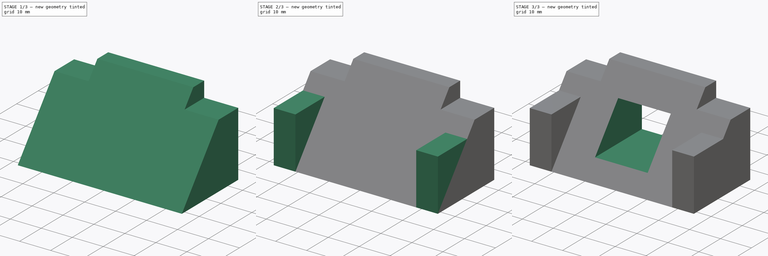
[diagram: build sequence overview — one tinted view per stage of 3, left to right]
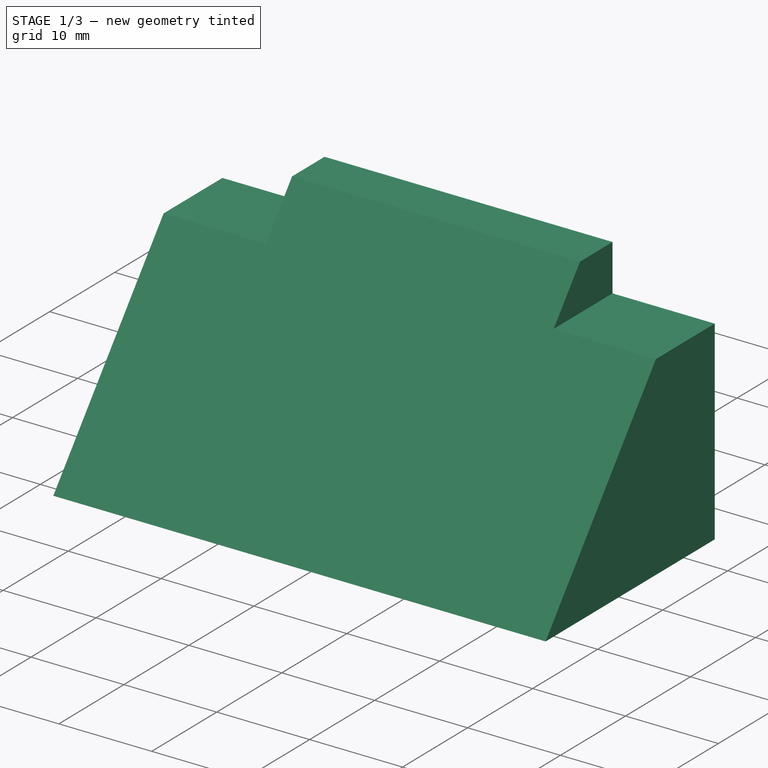
[diagram: stage 1 of 3 — iso view after this stage's code; geometry added in this stage tinted green]
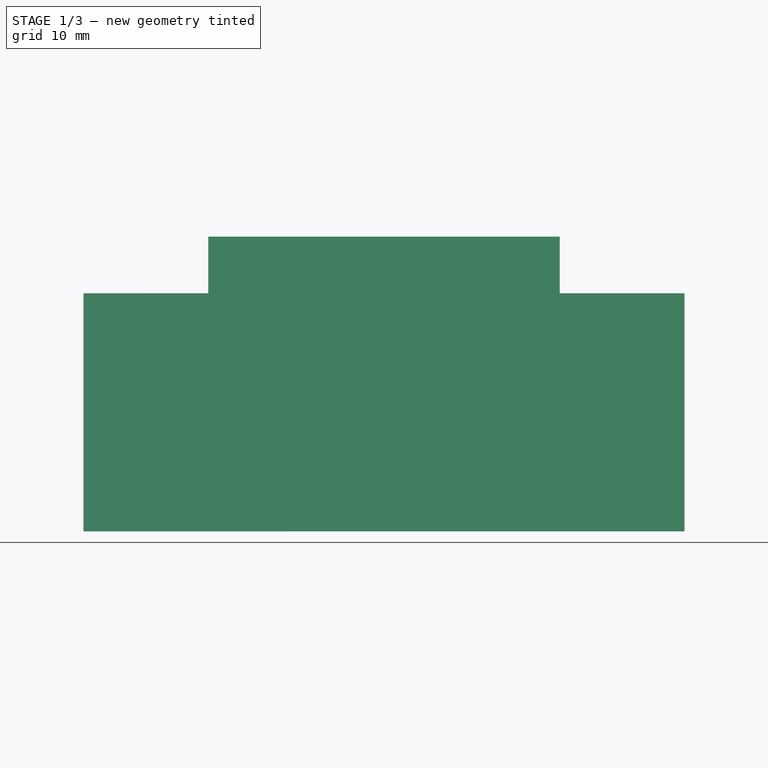
[diagram: stage 1 of 3 — front view after this stage's code; geometry added in this stage tinted green]
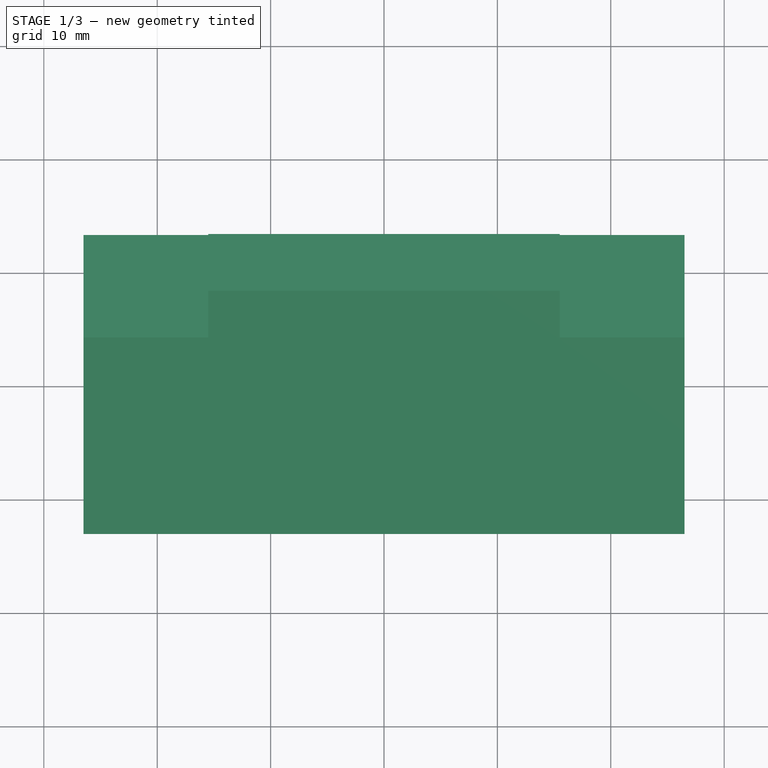
[diagram: stage 1 of 3 — top view after this stage's code; geometry added in this stage tinted green]
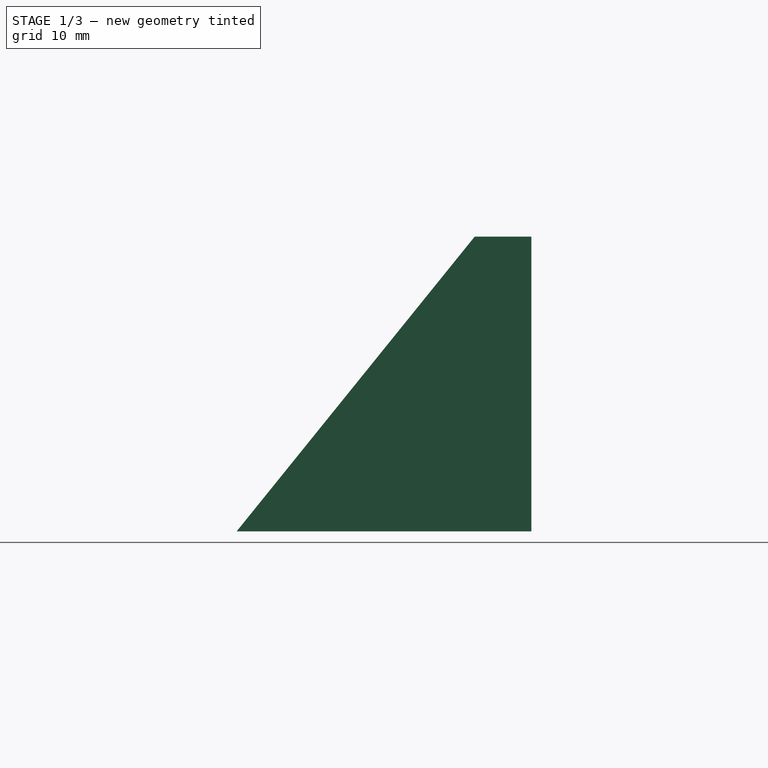
[diagram: stage 1 of 3 — right view after this stage's code; geometry added in this stage tinted green]
FCSTD DOCUMENT  (FreeCAD 0.16R6706 (Git))
Label: Basic_Part_Design_Tutorial
License: All rights reserved
LicenseURL: http://en.wikipedia.org/wiki/All_rights_reserved
objects: App::FeaturePython×13, Sketcher::SketchObject×5, PartDesign::Pad×3, PartDesign::Pocket×2, PartDesign::Mirrored×2, Part::FeaturePython×1
note: 18 computed .brp shape members not serialized (recipe doc carries the construction recipe); baked Part::Feature solids carry a one-line shape summary decoded from their .brp

FEATURE [Sketcher::SketchObject] Sketch
  Placement = pos=(0,0,0) rot=(0.57735,0.57735,0.57735;2.0944rad)
  sketch-geometry (4):
    g0: LineSegment StartX=-13 StartY=-13 StartZ=0 EndX=13 EndY=-13 EndZ=0
    g1: LineSegment StartX=13 StartY=-13 StartZ=0 EndX=13 EndY=13 EndZ=0
    g2: LineSegment StartX=13 StartY=13 StartZ=0 EndX=8 EndY=13 EndZ=0
    g3: LineSegment StartX=8 StartY=13 StartZ=0 EndX=-13 EndY=-13 EndZ=0
  constraints (11):
    c: Horizontal(g0)
    c: Coincident(g0,g1)
    c: Vertical(g1)
    c: Coincident(g1,g2)
    c: Horizontal(g2)
    c: Coincident(g2,g3)
    c: Coincident(g3,g0)
    c: Equal(g0,g1)
    c: DistanceX(g2,g2) = 5
    c: DistanceX(g0,g0) = 26
    c: Symmetric(g0,g1,g-1)
FEATURE [PartDesign::Pad] Pad
  Length = 53
  Length2 = 100
  Midplane = true
  Placement = pos=(0,0,0) rot=(0.57735,0.57735,0.57735;2.0944rad)
  Sketch = -> Sketch
  Type = 0
FEATURE [Sketcher::SketchObject] Sketch001
  ExternalGeometry = -> [Pad]
  Placement = pos=(0,13,0) rot=(0.57735,0.57735,0.57735;4.18879rad)
  Support = -> Pad [Face2]
  sketch-geometry (4):
    g0: LineSegment StartX=13 StartY=26.5 StartZ=0 EndX=8 EndY=26.5 EndZ=0
    g1: LineSegment StartX=8 StartY=26.5 StartZ=0 EndX=8 EndY=15.5 EndZ=0
    g2: LineSegment StartX=8 StartY=15.5 StartZ=0 EndX=13 EndY=15.5 EndZ=0
    g3: LineSegment StartX=13 StartY=15.5 StartZ=0 EndX=13 EndY=26.5 EndZ=0
  constraints (11):
    c: Coincident(g0,g1)
    c: Coincident(g1,g2)
    c: Coincident(g2,g3)
    c: Coincident(g3,g0)
    c: Horizontal(g0)
    c: Horizontal(g2)
    c: Vertical(g1)
    c: Vertical(g3)
    c: DistanceY(g1,g1) = 11
    c: DistanceX(g2,g2) = 5
    c: Coincident(g0,g-3)
FEATURE [PartDesign::Pocket] Pocket
  Length = 5
  Placement = pos=(0,0,0) rot=(0.57735,0.57735,0.57735;2.0944rad)
  Sketch = -> Sketch001
  Type = 1
FEATURE [PartDesign::Mirrored] Mirrored
  MirrorPlane = -> Sketch001 [H_Axis]
  Originals = -> [Pocket]
  Placement = pos=(0,0,0) rot=(0.57735,0.57735,0.57735;2.0944rad)
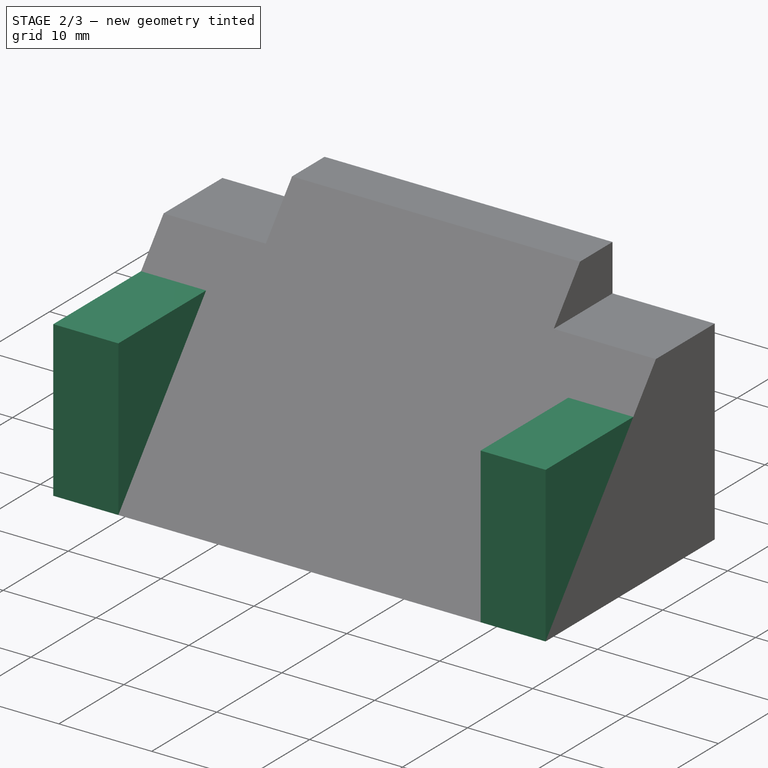
[diagram: stage 2 of 3 — iso view after this stage's code; geometry added in this stage tinted green]
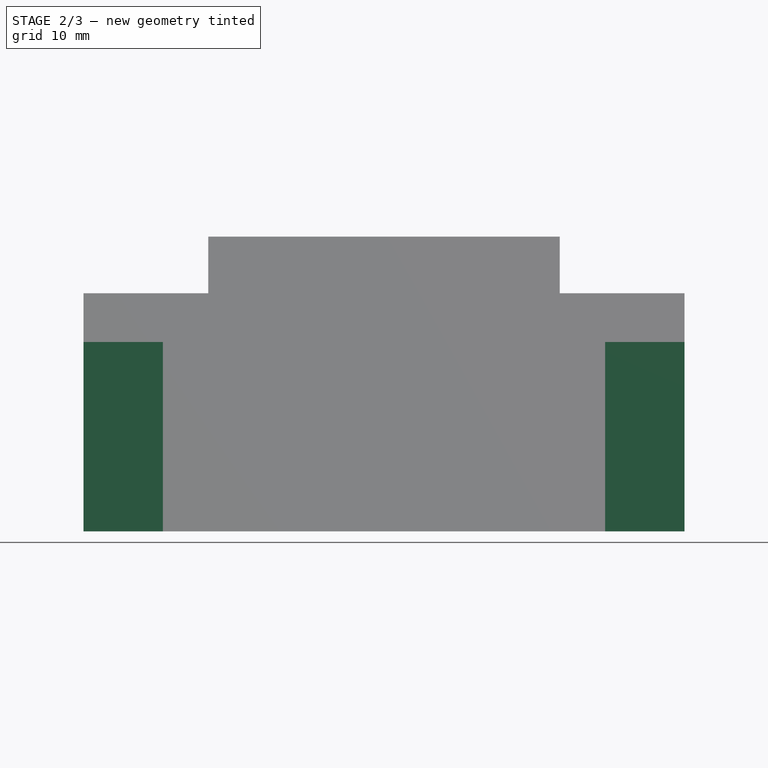
[diagram: stage 2 of 3 — front view after this stage's code; geometry added in this stage tinted green]
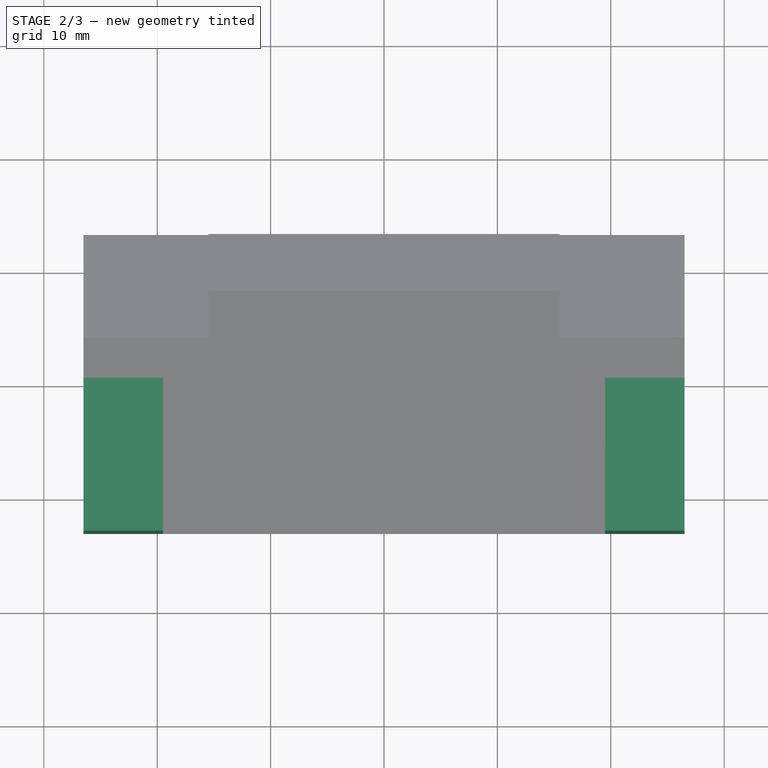
[diagram: stage 2 of 3 — top view after this stage's code; geometry added in this stage tinted green]
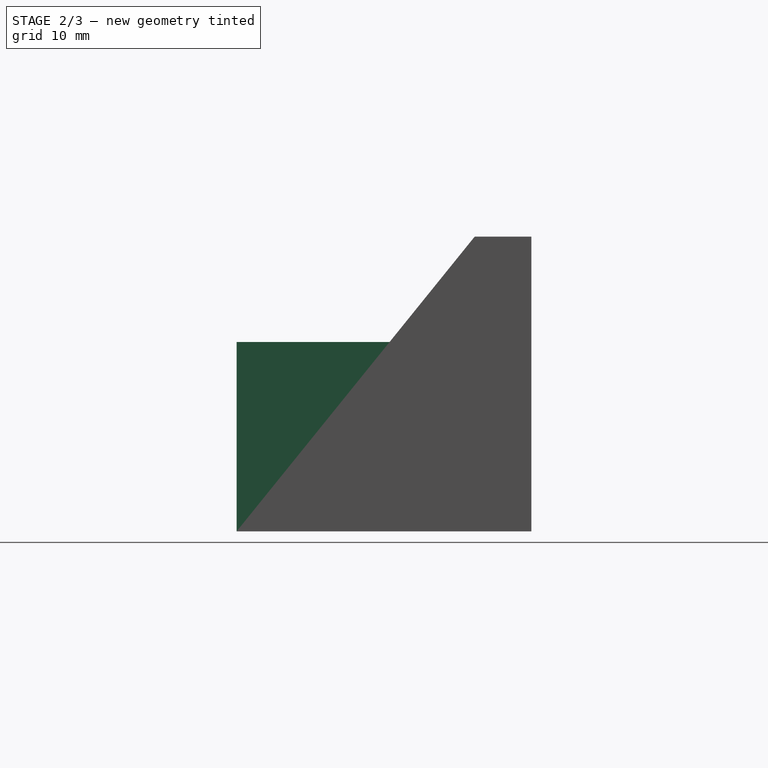
[diagram: stage 2 of 3 — right view after this stage's code; geometry added in this stage tinted green]
FEATURE [Sketcher::SketchObject] Sketch002
  ExternalGeometry = -> [Mirrored]
  Placement = pos=(0,13,0) rot=(0.57735,0.57735,0.57735;4.18879rad)
  Support = -> Mirrored [Face3]
  sketch-geometry (4):
    g0: LineSegment StartX=-13 StartY=26.5 StartZ=0 EndX=3.7 EndY=26.5 EndZ=0
    g1: LineSegment StartX=3.7 StartY=26.5 StartZ=0 EndX=3.7 EndY=19.5 EndZ=0
    g2: LineSegment StartX=3.7 StartY=19.5 StartZ=0 EndX=-13 EndY=19.5 EndZ=0
    g3: LineSegment StartX=-13 StartY=19.5 StartZ=0 EndX=-13 EndY=26.5 EndZ=0
  constraints (11):
    c: Coincident(g0,g1)
    c: Coincident(g1,g2)
    c: Coincident(g2,g3)
    c: Coincident(g3,g0)
    c: Horizontal(g0)
    c: Horizontal(g2)
    c: Vertical(g1)
    c: Vertical(g3)
    c: DistanceX(g2,g2) = 16.7
    c: DistanceY(g1,g1) = 7
    c: Coincident(g0,g-3)
FEATURE [PartDesign::Pad] Pad001
  Length = 26
  Length2 = 100
  Placement = pos=(0,0,0) rot=(0.57735,0.57735,0.57735;2.0944rad)
  Reversed = true
  Sketch = -> Sketch002
  Type = 0
FEATURE [PartDesign::Mirrored] Mirrored001
  MirrorPlane = -> Sketch002 [H_Axis]
  Originals = -> [Pad001]
  Placement = pos=(0,0,0) rot=(0.57735,0.57735,0.57735;2.0944rad)
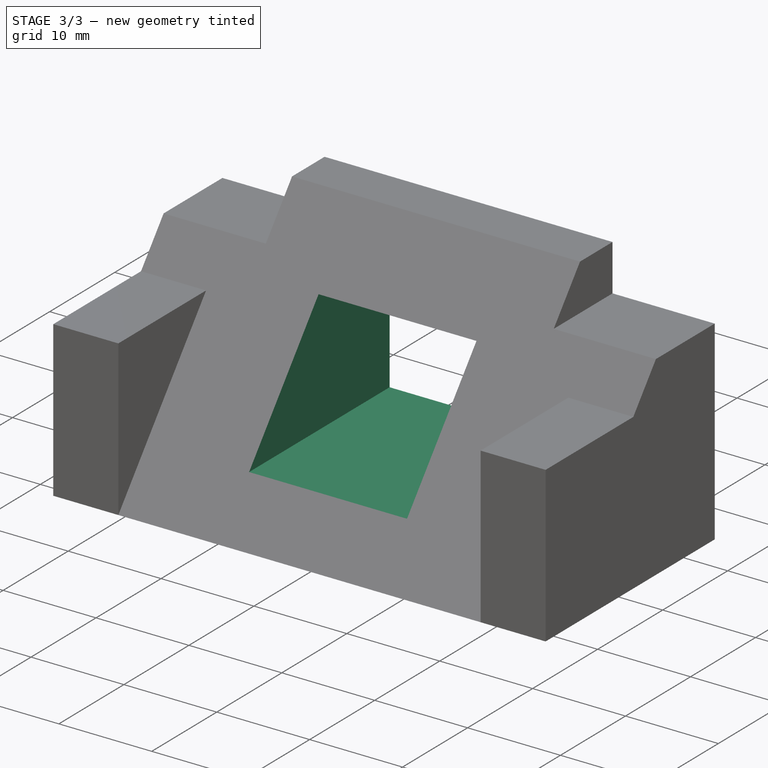
[diagram: stage 3 of 3 — iso view after this stage's code; geometry added in this stage tinted green]
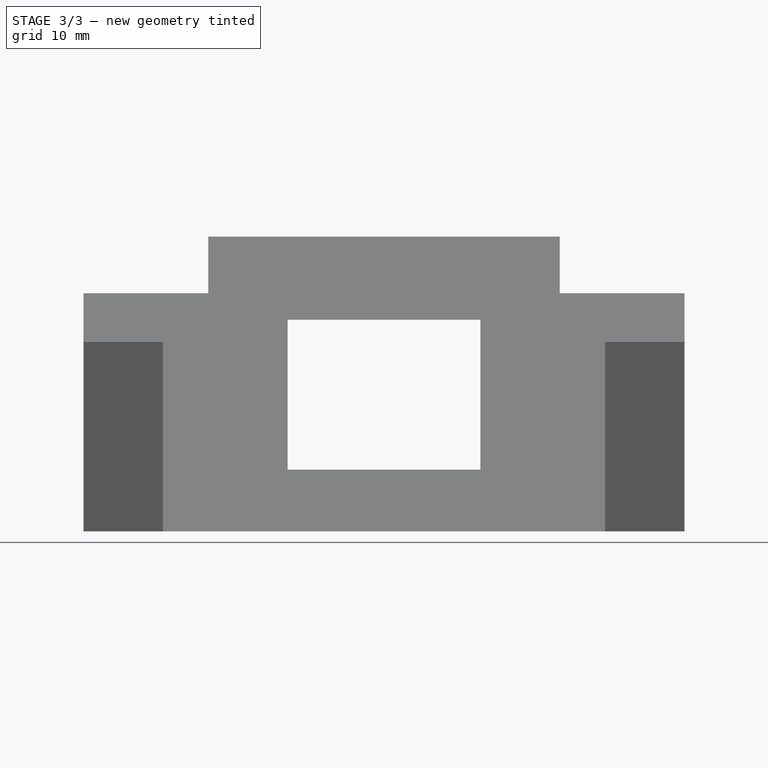
[diagram: stage 3 of 3 — front view after this stage's code; geometry added in this stage tinted green]
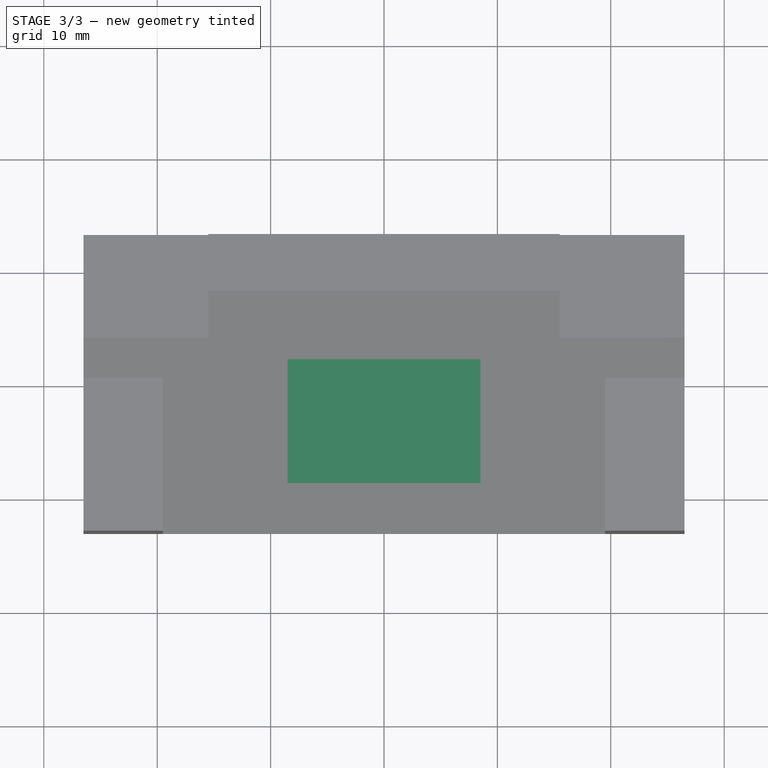
[diagram: stage 3 of 3 — top view after this stage's code; geometry added in this stage tinted green]
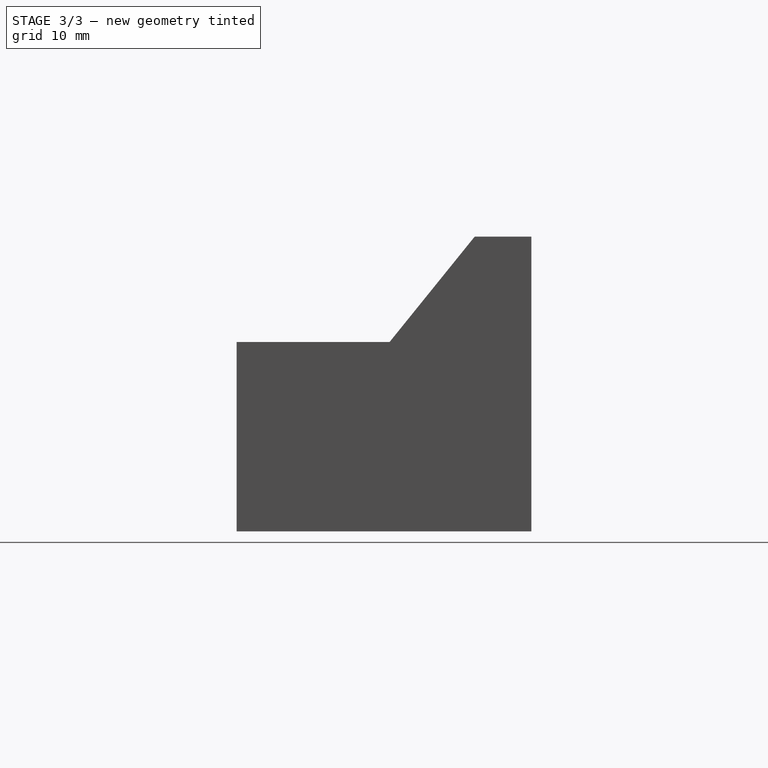
[diagram: stage 3 of 3 — right view after this stage's code; geometry added in this stage tinted green]
FEATURE [Sketcher::SketchObject] Sketch003
  ExternalGeometry = -> [Mirrored001]
  Placement = pos=(0,-1.51298,1.22202) rot=(0.395866,0.395866,-0.828601;1.75771rad)
  Support = -> Mirrored001 [Face3]
  sketch-geometry (4):
    g0: LineSegment StartX=-5.71838 StartY=8.5 StartZ=0 EndX=11.2816 EndY=8.5 EndZ=0
    g1: LineSegment StartX=11.2816 StartY=8.5 StartZ=0 EndX=11.2816 EndY=-8.5 EndZ=0
    g2: LineSegment StartX=11.2816 StartY=-8.5 StartZ=0 EndX=-5.71838 EndY=-8.5 EndZ=0
    g3: LineSegment StartX=-5.71838 StartY=-8.5 StartZ=0 EndX=-5.71838 EndY=8.5 EndZ=0
  constraints (12):
    c: Coincident(g0,g1)
    c: Coincident(g1,g2)
    c: Coincident(g2,g3)
    c: Coincident(g3,g0)
    c: Horizontal(g0)
    c: Horizontal(g2)
    c: Vertical(g1)
    c: Vertical(g3)
    c: Equal(g2,g1)
    c: DistanceY(g3,g3) = 17
    c: DistanceX(g0,g-3) = 7
    c: DistanceY(g0,g-3) = 11
FEATURE [PartDesign::Pad] Pad002
  Length = 1
  Length2 = 100
  Placement = pos=(0,0,0) rot=(0.57735,0.57735,0.57735;2.0944rad)
  Sketch = -> Sketch003
  Type = 0
FEATURE [Sketcher::SketchObject] Sketch004
  ExternalGeometry = -> [Pad002]
  Placement = pos=(0,13,0) rot=(0.57735,0.57735,0.57735;4.18879rad)
  Support = -> Pad002 [Face2]
  sketch-geometry (4):
    g0: LineSegment StartX=5.67059 StartY=8.5 StartZ=0 EndX=-7.55441 EndY=8.5 EndZ=0
    g1: LineSegment StartX=-7.55441 StartY=8.5 StartZ=0 EndX=-7.55441 EndY=-8.5 EndZ=0
    g2: LineSegment StartX=-7.55441 StartY=-8.5 StartZ=0 EndX=5.67059 EndY=-8.5 EndZ=0
    g3: LineSegment StartX=5.67059 StartY=-8.5 StartZ=0 EndX=5.67059 EndY=8.5 EndZ=0
  constraints (10):
    c: Coincident(g0,g1)
    c: Coincident(g1,g2)
    c: Coincident(g2,g3)
    c: Coincident(g3,g0)
    c: Horizontal(g0)
    c: Horizontal(g2)
    c: Vertical(g1)
    c: Vertical(g3)
    c: Coincident(g0,g-3)
    c: Coincident(g1,g-4)
FEATURE [PartDesign::Pocket] Pocket001
  Length = 5
  Placement = pos=(0,0,0) rot=(0.57735,0.57735,0.57735;2.0944rad)
  Sketch = -> Sketch004
  Type = 1
FEATURE [Part::FeaturePython] refine  label="refine_Pocket001"  # WARN: FeaturePython — macro-defined, semantics opaque (R4)
  Base = -> Pocket001
FEATURE [App::FeaturePython] Dimension  # Draft dimension (typed FeaturePython)
  Dimline = (0.798709,-20,-13)
  Direction = (0,0,0)
  Distance = 39
  End = (19.5,-13,-13)
  Normal = (0,0,1)
  Start = (-19.5,-13,-13)
FEATURE [App::FeaturePython] Dimension001  # Draft dimension (typed FeaturePython)
  Dimline = (22.9963,-25,-13)
  Direction = (0,0,0)
  Distance = 7
  End = (26.5,-13,-13)
  Normal = (0,0,1)
  Start = (19.5,-13,-13)
FEATURE [App::FeaturePython] Dimension002  # Draft dimension (typed FeaturePython)
  Dimline = (-22.5388,-25,-13)
  Direction = (0,0,0)
  Distance = 7
  End = (-19.5,-13,-13)
  Normal = (0,0,1)
  Start = (-26.5,-13,-13)
FEATURE [App::FeaturePython] Dimension003  # Draft dimension (typed FeaturePython)
  Dimline = (34,-2.44546,-13)
  Direction = (0,0,0)
  Distance = 26
  End = (26.5,13,-13)
  Normal = (0,0,1)
  Start = (26.5,-13,-13)
FEATURE [App::FeaturePython] Dimension004  # Draft dimension (typed FeaturePython)
  Dimline = (-32.1329,-13,-1.9061)
  Direction = (0,0,0)
  Distance = 16.7
  End = (-26.5,-13,3.7)
  Normal = (0,-1,0)
  Start = (-26.5,-13,-13)
FEATURE [App::FeaturePython] Dimension005  # Draft dimension (typed FeaturePython)
  Dimline = (26.5,20,-0.907276)
  Direction = (0,0,0)
  Distance = 21
  End = (26.5,13,8)
  Normal = (1,0,0)
  Start = (26.5,13,-13)
FEATURE [App::FeaturePython] Dimension006  # Draft dimension (typed FeaturePython)
  Dimline = (21.0797,19.6845,8)
  Direction = (0,0,0)
  Distance = 11
  End = (26.5,13,8)
  Normal = (0,0,1)
  Start = (15.5,13,8)
FEATURE [App::FeaturePython] Dimension007  # Draft dimension (typed FeaturePython)
  Dimline = (-8.32898,10.2887,13)
  Direction = (0,0,0)
  Distance = 5
  End = (-15.5,13,13)
  Normal = (0,0,1)
  Start = (-15.5,8,13)
FEATURE [App::FeaturePython] Dimension008  # Draft dimension (typed FeaturePython)
  Dimline = (15.5,26.1631,9.45255)
  Direction = (0,0,0)
  Distance = 5
  End = (15.5,13,13)
  Normal = (1,0,0)
  Start = (15.5,13,8)
FEATURE [App::FeaturePython] Dimension009  # Draft dimension (typed FeaturePython)
  Dimline = (0.358059,3.79867,7.79836)
  Direction = (0,0,0)
  Distance = 17
  End = (8.5,2.08009,5.67059)
  Normal = (0,-0.777941,0.628337)
  Start = (-8.5,2.08009,5.67059)
FEATURE [App::FeaturePython] Dimension010  # Draft dimension (typed FeaturePython)
  Dimline = (11.7601,-3.33474,-1.03349)
  Direction = (0,0,0)
  Distance = 17
  End = (8.5,2.08009,5.67059)
  Normal = (0,-0.777941,0.628337)
  Start = (8.5,-8.60164,-7.55441)
FEATURE [App::FeaturePython] Dimension011  # Draft dimension (typed FeaturePython)
  Dimline = (4.30941,-11.0086,-10.5345)
  Direction = (0,0,0)
  Distance = 7
  End = (8.5,-8.60164,-7.55441)
  Normal = (0,-0.777941,0.628337)
  Start = (8.5,-13,-13)
FEATURE [App::FeaturePython] Dimension012  # Draft dimension (typed FeaturePython)
  Dimline = (-14.9725,-6.3898,-4.81595)
  Direction = (0,0,0)
  Distance = 11
  End = (-8.5,-8.60164,-7.55441)
  Normal = (0,-0.777941,0.628337)
  Start = (-19.5,-8.60164,-7.55441)
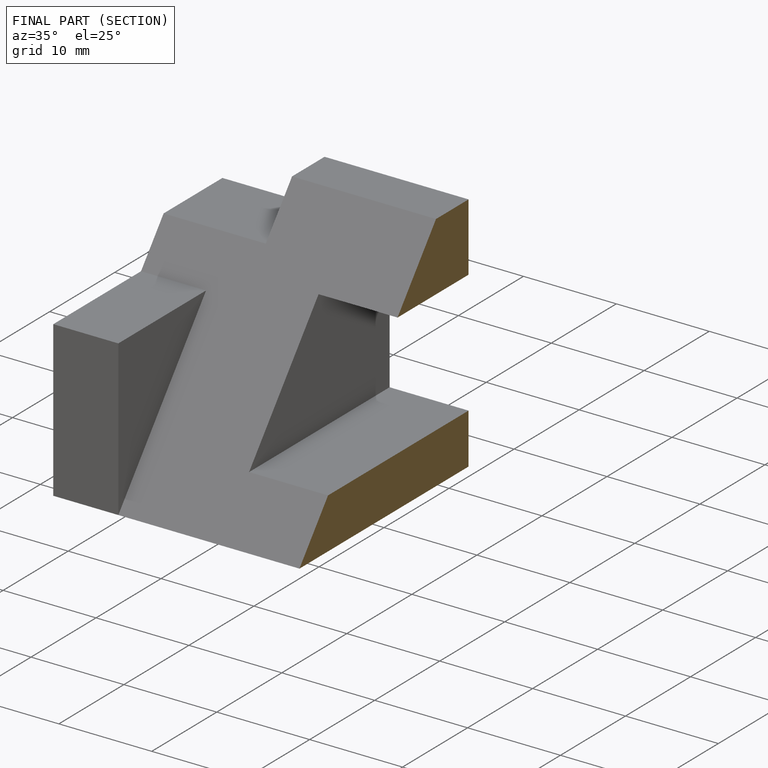
[diagram: finished part — half-section view (interior)]
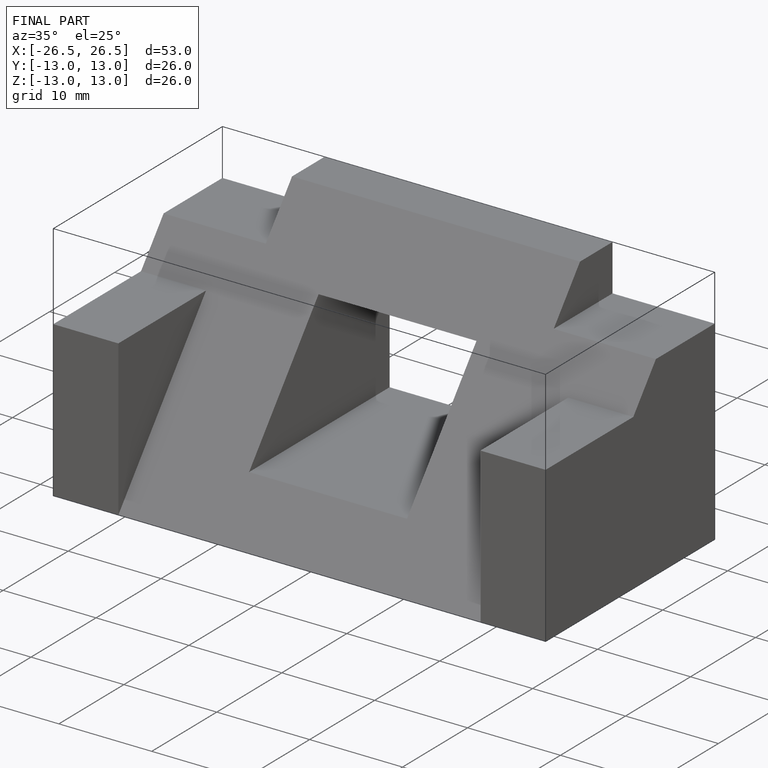
[diagram: finished part — iso view with bounding-box wireframe]
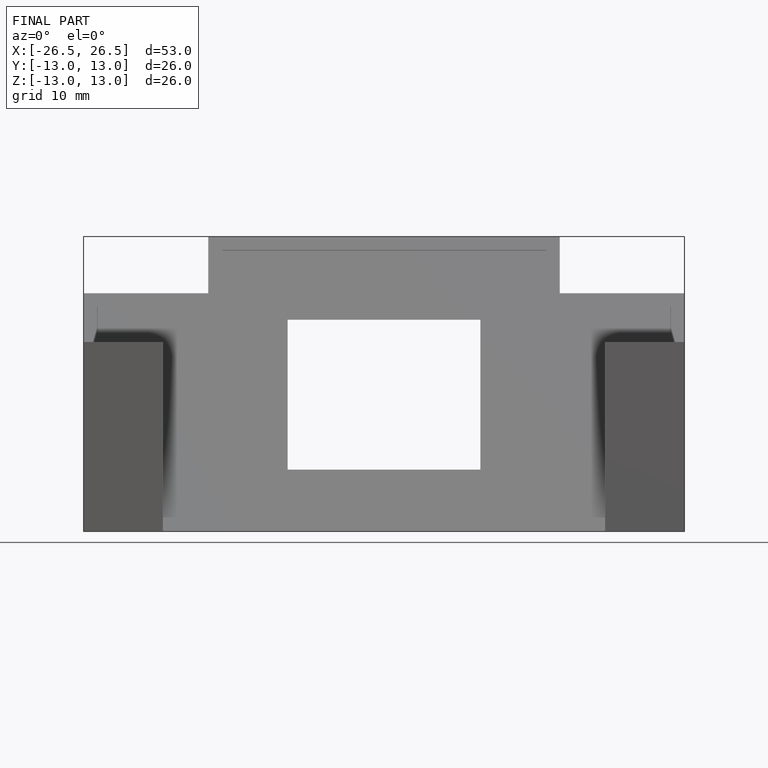
[diagram: finished part — front view with bounding-box wireframe]
